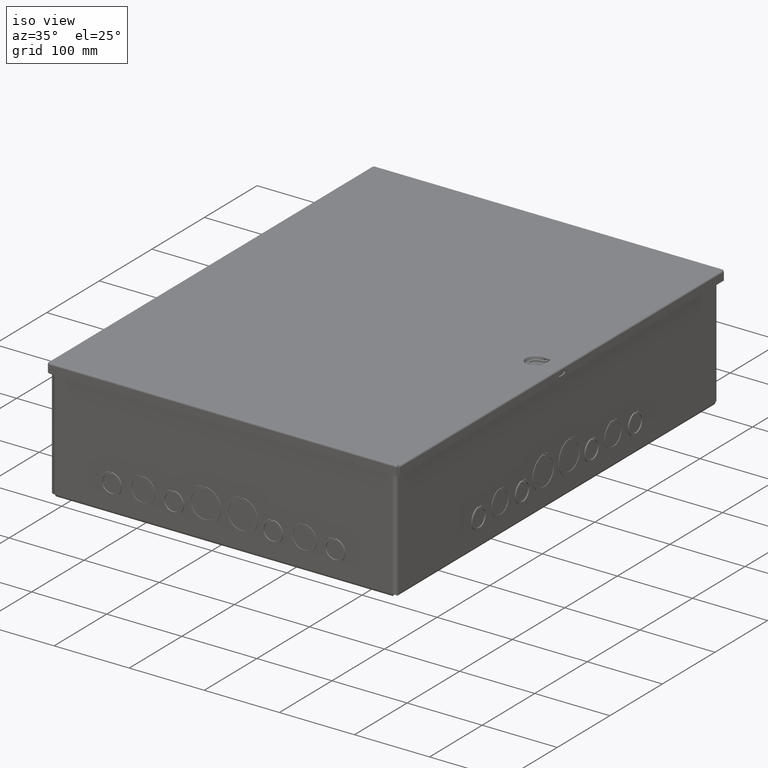
[diagram: clean part render]
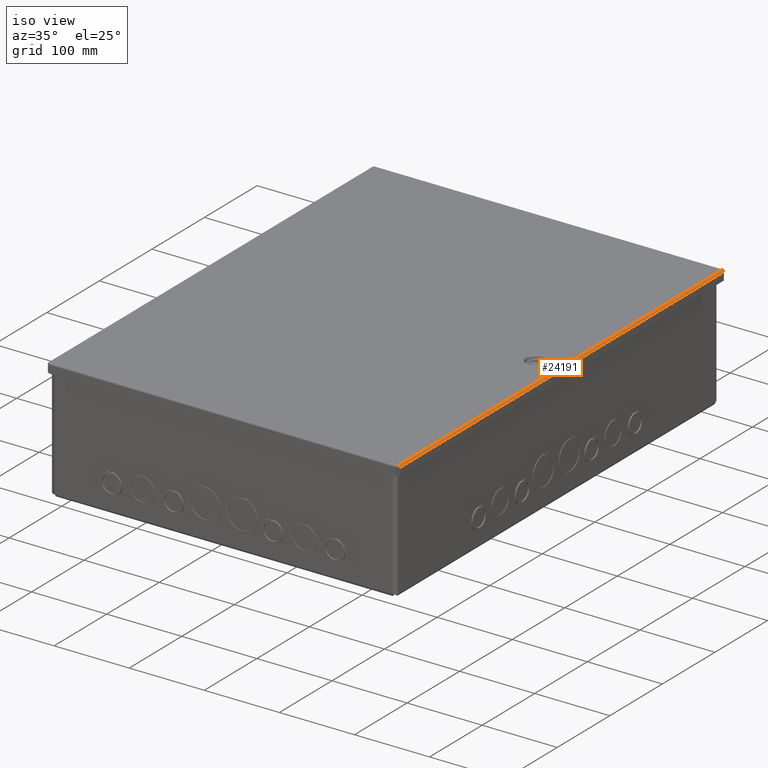
[diagram: same view with one face highlighted and labeled with its STEP entity id]
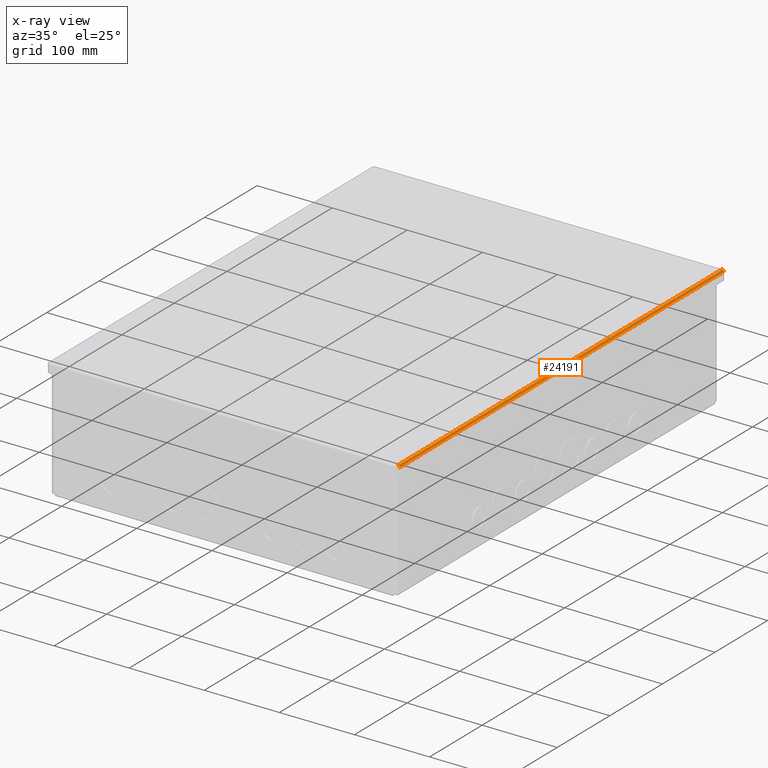
[diagram: x-ray of the same camera — body ghosted, the highlighted face saturated]
A machine part, iso view. The second image highlights one B-rep face of the part: STEP entity #24191.
The next image is the same camera in x-ray: the body ghosted, the highlighted face saturated — about 0% of this face is hidden behind the body in this view.
In plain terms, the highlighted cylindrical surface (edge-blend (fillet) strip) has radius 2.3685 mm, axis along (0, 1, 0).
Its self-contained STEP definition (entity closure, byte-faithful):
#173=B_SPLINE_CURVE_WITH_KNOTS($,3,(#40224,#40225,#40226,#40227,#40228,
#40229,#40230),.UNSPECIFIED.,.F.,.F.,(4,3,4),(0.,0.67319842576924,1.57079632679489),
 .UNSPECIFIED.);
#174=B_SPLINE_CURVE_WITH_KNOTS($,3,(#40232,#40233,#40234,#40235,#40236,
#40237,#40238),.UNSPECIFIED.,.F.,.F.,(4,3,4),(0.,0.673198425769252,1.57079632679489),
 .UNSPECIFIED.);
#2652=LINE($,#40222,#5032);
#2653=LINE($,#40231,#5033);
#5032=VECTOR($,#32020,24.2904029130879);
#5033=VECTOR($,#32021,24.25);
#5349=CYLINDRICAL_SURFACE($,#26029,0.0932499999999995);
#6940=FACE_OUTER_BOUND($,#8488,.T.);
#8488=EDGE_LOOP($,(#20587,#20588,#20589,#20590));
#11004=VERTEX_POINT($,#40125);
#11011=VERTEX_POINT($,#40220);
#11012=VERTEX_POINT($,#40221);
#11013=VERTEX_POINT($,#40223);
#14086=EDGE_CURVE($,#11011,#11012,#2652,.T.);
#14087=EDGE_CURVE($,#11013,#11011,#173,.T.);
#14088=EDGE_CURVE($,#11013,#11004,#2653,.T.);
#14089=EDGE_CURVE($,#11012,#11004,#174,.T.);
#20587=ORIENTED_EDGE($,*,*,#14086,.F.);
#20588=ORIENTED_EDGE($,*,*,#14087,.F.);
#20589=ORIENTED_EDGE($,*,*,#14088,.T.);
#20590=ORIENTED_EDGE($,*,*,#14089,.F.);
#24191=ADVANCED_FACE($,(#6940),#5349,.T.);
#26029=AXIS2_PLACEMENT_3D($,#40219,#32018,#32019);
#32018=DIRECTION('center_axis',(-1.15357210124215E-016,1.,0.));
#32019=DIRECTION('ref_axis',(0.,0.,1.));
#32020=DIRECTION($,(1.15478553624652E-016,-1.,6.54078217227801E-034));
#32021=DIRECTION($,(1.15357210124215E-016,-1.,0.));
#40125=CARTESIAN_POINT('',(9.125,-12.125,0.062));
#40219=CARTESIAN_POINT('Origin',(9.125,1.3987061727561E-015,-0.0312499999999995));
#40220=CARTESIAN_POINT('',(9.21825,12.145201456544,-0.0312499999999995));
#40221=CARTESIAN_POINT('',(9.21825,-12.145201456544,-0.0312499999999995));
#40222=CARTESIAN_POINT($,(9.21825,1.05699107249262E-015,-0.0312499999999995));
#40223=CARTESIAN_POINT('',(9.125,12.125,0.062));
#40224=CARTESIAN_POINT('Ctrl Pts',(9.125,12.125,0.062));
#40225=CARTESIAN_POINT('Ctrl Pts',(9.14592525106766,12.1278859223634,0.062));
#40226=CARTESIAN_POINT('Ctrl Pts',(9.16687646745828,12.1307718447268,0.0546838394773266));
#40227=CARTESIAN_POINT('Ctrl Pts',(9.18315363593023,12.1336577670903,0.0416356739498412));
#40228=CARTESIAN_POINT('Ctrl Pts',(9.20485652722616,12.1375056635748,0.0242381199131941));
#40229=CARTESIAN_POINT('Ctrl Pts',(9.21825,12.1413535600594,-0.00334966524311865));
#40230=CARTESIAN_POINT('Ctrl Pts',(9.21825,12.145201456544,-0.031249999999999));
#40231=CARTESIAN_POINT($,(9.125,12.125,0.062));
#40232=CARTESIAN_POINT('Ctrl Pts',(9.21825,-12.145201456544,-0.031249999999999));
#40233=CARTESIAN_POINT('Ctrl Pts',(9.21825,-12.1423155341805,-0.0103247489323383));
#40234=CARTESIAN_POINT('Ctrl Pts',(9.21093383947733,-12.1394296118171,0.0106264674582857));
#40235=CARTESIAN_POINT('Ctrl Pts',(9.19788567394984,-12.1365436894537,0.026903635930233));
#40236=CARTESIAN_POINT('Ctrl Pts',(9.18048811991319,-12.1326957929691,0.0486065272261621));
#40237=CARTESIAN_POINT('Ctrl Pts',(9.15290033475688,-12.1288478964846,0.0619999999999999));
#40238=CARTESIAN_POINT('Ctrl Pts',(9.125,-12.125,0.0619999999999999));